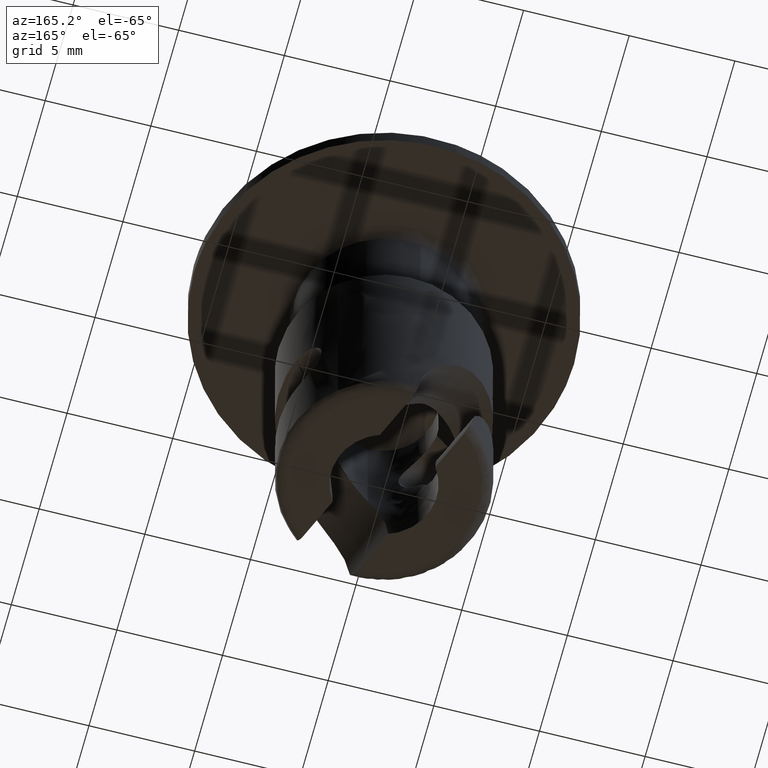
[diagram: clean part render]
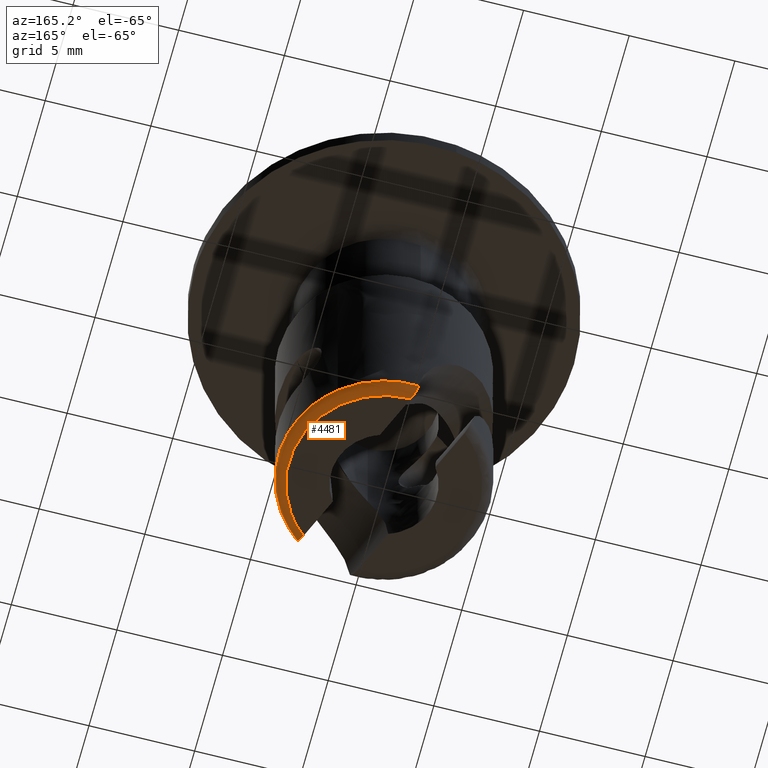
[diagram: same view with one face highlighted and labeled with its STEP entity id]
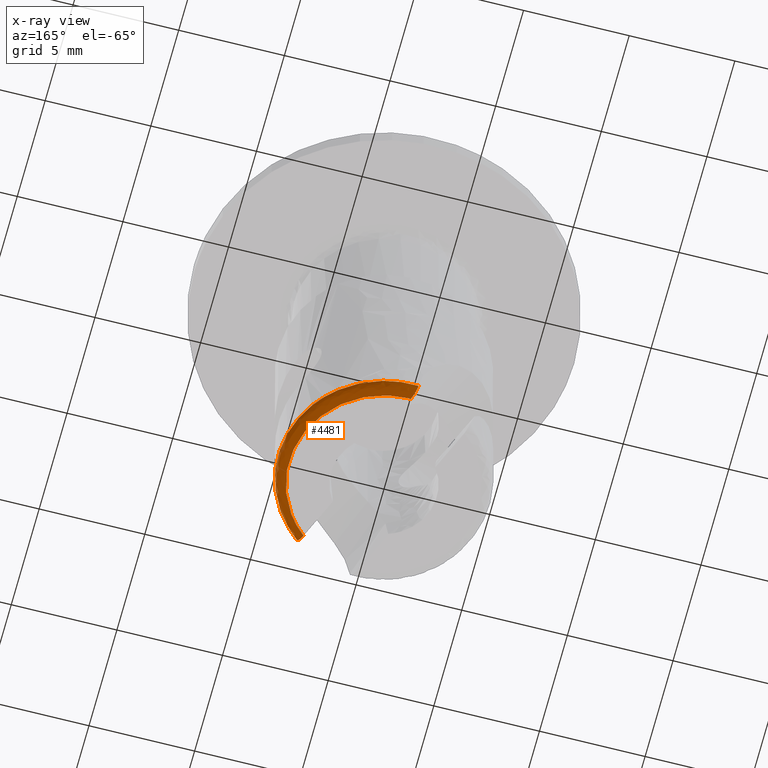
[diagram: x-ray of the same camera — body ghosted, the highlighted face saturated]
A machine part, auxiliary view. The second image highlights one B-rep face of the part: STEP entity #4481.
The next image is the same camera in x-ray: the body ghosted, the highlighted face saturated — about 0% of this face is hidden behind the body in this view.
In plain terms, the highlighted face is a freeform B-spline surface patch.
Its self-contained STEP definition (entity closure, byte-faithful):
#988=CARTESIAN_POINT('',(3.124494516365015,-3.903528406096845,-17.500000000000000));
#989=VERTEX_POINT('',#988);
#1005=CARTESIAN_POINT('',(3.441767838297122,-3.626876637992430,-17.500000000000000));
#1006=VERTEX_POINT('',#1005);
#1007=CARTESIAN_POINT('',(3.124494516365013,-3.903528406096843,-17.500000000000000));
#1008=CARTESIAN_POINT('',(3.288959165666075,-3.771886250227179,-17.500000000000004));
#1009=CARTESIAN_POINT('',(3.441767838297122,-3.626876637992430,-17.500000000000000));
#1017=(BOUNDED_CURVE()B_SPLINE_CURVE(2,(#1007,#1008,#1009),.UNSPECIFIED.,.F.,.U.)B_SPLINE_CURVE_WITH_KNOTS((3,3),(0.0,0.035159372546306),.UNSPECIFIED.)CURVE()GEOMETRIC_REPRESENTATION_ITEM()RATIONAL_B_SPLINE_CURVE((1.0,0.986404566132015,0.974721159961203))REPRESENTATION_ITEM(''));
#1018=EDGE_CURVE('',#989,#1006,#1017,.T.);
#1050=CARTESIAN_POINT('',(3.205213401254789,3.837526163091908,-17.500000000000011));
#1051=VERTEX_POINT('',#1050);
#1052=CARTESIAN_POINT('',(-0.313195308170528,4.990181229067730,-17.500000000000000));
#1053=VERTEX_POINT('',#1052);
#1054=CARTESIAN_POINT('',(3.205213401254788,3.837526163091908,-17.500000000000004));
#1055=CARTESIAN_POINT('',(1.675712606194271,5.115009686906861,-17.500000000000000));
#1056=CARTESIAN_POINT('',(-0.313195308170527,4.990181229067735,-17.500000000000000));
#1064=(BOUNDED_CURVE()B_SPLINE_CURVE(2,(#1054,#1055,#1056),.UNSPECIFIED.,.F.,.U.)B_SPLINE_CURVE_WITH_KNOTS((3,3),(0.701706668994408,1.0),.UNSPECIFIED.)CURVE()GEOMETRIC_REPRESENTATION_ITEM()RATIONAL_B_SPLINE_CURVE((0.906937278602768,0.884655869509436,1.0))REPRESENTATION_ITEM(''));
#1065=EDGE_CURVE('',#1051,#1053,#1064,.T.);
#1355=CARTESIAN_POINT('',(3.441767838297122,-3.626876637992430,-17.500000000000000));
#1356=CARTESIAN_POINT('',(5.871268276482607,-1.321373223936449,-17.499999999999996));
#1357=CARTESIAN_POINT('',(4.663729042102849,1.802673409646474,-17.500000000000000));
#1358=CARTESIAN_POINT('',(4.197570472817775,3.008680690924489,-17.500000000000000));
#1359=CARTESIAN_POINT('',(3.205213401254788,3.837526163091908,-17.500000000000004));
#1367=(BOUNDED_CURVE()B_SPLINE_CURVE(2,(#1355,#1356,#1357,#1358,#1359),.UNSPECIFIED.,.F.,.U.)B_SPLINE_CURVE_WITH_KNOTS((3,2,3),(0.035159372546306,0.500000000000000,0.701706668994408),.UNSPECIFIED.)CURVE()GEOMETRIC_REPRESENTATION_ITEM()RATIONAL_B_SPLINE_CURVE((0.974721159961203,0.820255324483505,1.0,0.922004021106084,0.906937278602768))REPRESENTATION_ITEM(''));
#1368=EDGE_CURVE('',#1006,#1051,#1367,.T.);
#3278=CARTESIAN_POINT('',(-0.085926746010043,4.499179546797280,-18.0));
#3279=VERTEX_POINT('',#3278);
#3280=CARTESIAN_POINT('',(-0.085926746010043,4.499179546797280,-18.0));
#3281=CARTESIAN_POINT('',(-0.099194621547314,4.530436716631356,-18.000000000000028));
#3282=CARTESIAN_POINT('',(-0.112354986435309,4.561453441815380,-17.997048296491069));
#3283=CARTESIAN_POINT('',(-0.138478234853059,4.622989313843969,-17.985146117599680));
#3284=CARTESIAN_POINT('',(-0.151521887195154,4.653697536132277,-17.976062718069979));
#3285=CARTESIAN_POINT('',(-0.176424438465574,4.712117838628802,-17.952348155842451));
#3286=CARTESIAN_POINT('',(-0.188406280573396,4.740120921867622,-17.937701950207629));
#3287=CARTESIAN_POINT('',(-0.211493051025689,4.793580452211526,-17.902621870960491));
#3288=CARTESIAN_POINT('',(-0.222611230146577,4.819056779945026,-17.882055057046198));
#3289=CARTESIAN_POINT('',(-0.243052632517193,4.865004369988506,-17.836712412651309));
#3290=CARTESIAN_POINT('',(-0.252513708333435,4.885799521853067,-17.811761190461858));
#3291=CARTESIAN_POINT('',(-0.265603846995206,4.913513731192734,-17.770739657252079));
#3292=CARTESIAN_POINT('',(-0.269787602084607,4.922175461668958,-17.756425650270991));
#3293=CARTESIAN_POINT('',(-0.277595678438670,4.937892654581578,-17.727244305891318));
#3294=CARTESIAN_POINT('',(-0.281246845126906,4.945006087934382,-17.712299310660299));
#3295=CARTESIAN_POINT('',(-0.291468348587916,4.964122229638016,-17.666411702871009));
#3296=CARTESIAN_POINT('',(-0.297337216187183,4.973954245740750,-17.634276952589740));
#3297=CARTESIAN_POINT('',(-0.306985499787269,4.987129683534117,-17.567659002003388));
#3298=CARTESIAN_POINT('',(-0.310656887699815,4.990340546203751,-17.534002196224570));
#3299=CARTESIAN_POINT('',(-0.313195308170528,4.990181229067730,-17.500000000000000));
#3300=B_SPLINE_CURVE_WITH_KNOTS('',3,(#3280,#3281,#3282,#3283,#3284,#3285,#3286,#3287,#3288,#3289,#3290,#3291,#3292,#3293,#3294,#3295,#3296,#3297,#3298,#3299),.UNSPECIFIED.,.F.,.U.,(4,2,2,2,2,2,2,2,2,4),(0.0,0.124999999999997,0.249999999999993,0.374999999999990,0.499999999999986,0.624999999999983,0.687499999999985,0.749999999999988,0.874999999999994,1.0),.UNSPECIFIED.);
#3301=EDGE_CURVE('',#3279,#1053,#3300,.T.);
#4095=CARTESIAN_POINT('',(2.896918637067870,-3.443524697457790,-17.999991999999999));
#4096=VERTEX_POINT('',#4095);
#4102=CARTESIAN_POINT('',(2.896918637067870,-3.443524697457790,-17.999991999999999));
#4103=CARTESIAN_POINT('',(2.909889189152437,-3.474081414632379,-17.999992265028219));
#4104=CARTESIAN_POINT('',(2.923021818620198,-3.505054243283523,-17.996923436703231));
#4105=CARTESIAN_POINT('',(2.948669394379714,-3.565505339520926,-17.984704274738331));
#4106=CARTESIAN_POINT('',(2.961139402139914,-3.594877037636147,-17.975653899472690));
#4107=CARTESIAN_POINT('',(2.985478925744813,-3.651857335019899,-17.951642997388500));
#4108=CARTESIAN_POINT('',(2.997464634078881,-3.679730213676145,-17.936460478975551));
#4109=CARTESIAN_POINT('',(3.020039815790714,-3.731364118565590,-17.901022037858379));
#4110=CARTESIAN_POINT('',(3.030708789894082,-3.755318708838493,-17.880759909834321));
#4111=CARTESIAN_POINT('',(3.050972473009471,-3.799267783931292,-17.834956782581099));
#4112=CARTESIAN_POINT('',(3.060580134550246,-3.819256598020189,-17.809254771004301));
#4113=CARTESIAN_POINT('',(3.077944861990772,-3.853009863340511,-17.754790754367189));
#4114=CARTESIAN_POINT('',(3.085833930738279,-3.867073432647826,-17.725769489364620));
#4115=CARTESIAN_POINT('',(3.100122992330496,-3.889144432672481,-17.663939832964569));
#4116=CARTESIAN_POINT('',(3.106329370127066,-3.896824809239545,-17.631912473689979));
#4117=CARTESIAN_POINT('',(3.116819992628849,-3.905331020845691,-17.566880021220388));
#4118=CARTESIAN_POINT('',(3.121168416493807,-3.906190710203219,-17.533434311206388));
#4119=CARTESIAN_POINT('',(3.124494516365015,-3.903528406096845,-17.500000000000000));
#4120=B_SPLINE_CURVE_WITH_KNOTS('',3,(#4102,#4103,#4104,#4105,#4106,#4107,#4108,#4109,#4110,#4111,#4112,#4113,#4114,#4115,#4116,#4117,#4118,#4119),.UNSPECIFIED.,.F.,.U.,(4,2,2,2,2,2,2,2,4),(0.0,0.125000000000000,0.250000000000000,0.375000000000000,0.500000000000000,0.625000000000000,0.750000000000000,0.875000000000000,1.0),.UNSPECIFIED.);
#4121=EDGE_CURVE('',#4096,#989,#4120,.T.);
#4436=CARTESIAN_POINT('',(2.346015980786564,-3.799276134127239,-17.998789669196590));
#4437=CARTESIAN_POINT('',(5.488217090172582,-1.858997576522931,-17.998789669196587));
#4438=CARTESIAN_POINT('',(4.171994792628351,1.591461459079889,-17.998789669196590));
#4439=CARTESIAN_POINT('',(2.846845264593348,5.065323109246577,-17.998789669196583));
#4440=CARTESIAN_POINT('',(-0.809564673295674,4.391229345548514,-17.998789669196587));
#4441=CARTESIAN_POINT('',(2.647350392702872,-4.287274787572496,-18.038768798715648));
#4442=CARTESIAN_POINT('',(6.193152044955675,-2.097776828694763,-18.038768798715644));
#4443=CARTESIAN_POINT('',(4.707867356008363,1.795876990255650,-18.038768798715644));
#4444=CARTESIAN_POINT('',(3.212508776968633,5.715939376480680,-18.038768798715644));
#4445=CARTESIAN_POINT('',(-0.913549342084665,4.955261527454988,-18.038768798715640));
#4446=CARTESIAN_POINT('',(2.626345605906856,-4.253258401567412,-17.465231416515280));
#4447=CARTESIAN_POINT('',(6.144013918526255,-2.081132505693995,-17.465231416515287));
#4448=CARTESIAN_POINT('',(4.670513875959234,1.781628021401294,-17.465231416515287));
#4449=CARTESIAN_POINT('',(3.187019872240889,5.670587583128026,-17.465231416515287));
#4450=CARTESIAN_POINT('',(-0.906300997018209,4.915945155814272,-17.465231416515287));
#4458=(BOUNDED_SURFACE()B_SPLINE_SURFACE(2,2,((#4436,#4441,#4446),(#4437,#4442,#4447),(#4438,#4443,#4448),(#4439,#4444,#4449),(#4440,#4445,#4450)),.UNSPECIFIED.,.F.,.F.,.U.)B_SPLINE_SURFACE_WITH_KNOTS((3,2,3),(3,3),(0.0,7.197400778158996,14.431859328767439),(0.0,0.911187226123454),.UNSPECIFIED.)GEOMETRIC_REPRESENTATION_ITEM()RATIONAL_B_SPLINE_SURFACE(((0.895007357557586,0.587325983234991,0.895007222299300),(0.698970724295153,0.458681891754963,0.698970618662968),(0.919258322177741,0.603240066532360,0.919258183254520),(0.697836513775636,0.457937594735564,0.697836408314859),(0.897037089934965,0.588657943865461,0.897036954369935)))REPRESENTATION_ITEM('')SURFACE());
#4459=CARTESIAN_POINT('',(-0.085926746010043,4.499179546797280,-18.0));
#4460=CARTESIAN_POINT('',(3.094408215271598,4.559918584863825,-17.999998999330341));
#4461=CARTESIAN_POINT('',(4.212725547690110,1.582069356400305,-17.999995999999999));
#4462=CARTESIAN_POINT('',(5.331042880108620,-1.395779872063211,-17.999993000669658));
#4463=CARTESIAN_POINT('',(2.896918637067870,-3.443524697457790,-17.999991999999999));
#4471=(BOUNDED_CURVE()B_SPLINE_CURVE(2,(#4459,#4460,#4461,#4462,#4463),.UNSPECIFIED.,.F.,.U.)B_SPLINE_CURVE_WITH_KNOTS((3,2,3),(0.0,0.500000000000000,1.0),.UNSPECIFIED.)CURVE()GEOMETRIC_REPRESENTATION_ITEM()RATIONAL_B_SPLINE_CURVE((1.0,0.816587725262943,1.0,0.816587725262943,1.0))REPRESENTATION_ITEM(''));
#4472=EDGE_CURVE('',#3279,#4096,#4471,.T.);
#4473=ORIENTED_EDGE('',*,*,#4472,.F.);
#4474=ORIENTED_EDGE('',*,*,#3301,.T.);
#4475=ORIENTED_EDGE('',*,*,#1065,.F.);
#4476=ORIENTED_EDGE('',*,*,#1368,.F.);
#4477=ORIENTED_EDGE('',*,*,#1018,.F.);
#4478=ORIENTED_EDGE('',*,*,#4121,.F.);
#4479=EDGE_LOOP('',(#4473,#4474,#4475,#4476,#4477,#4478));
#4480=FACE_OUTER_BOUND('',#4479,.T.);
#4481=ADVANCED_FACE('',(#4480),#4458,.T.);